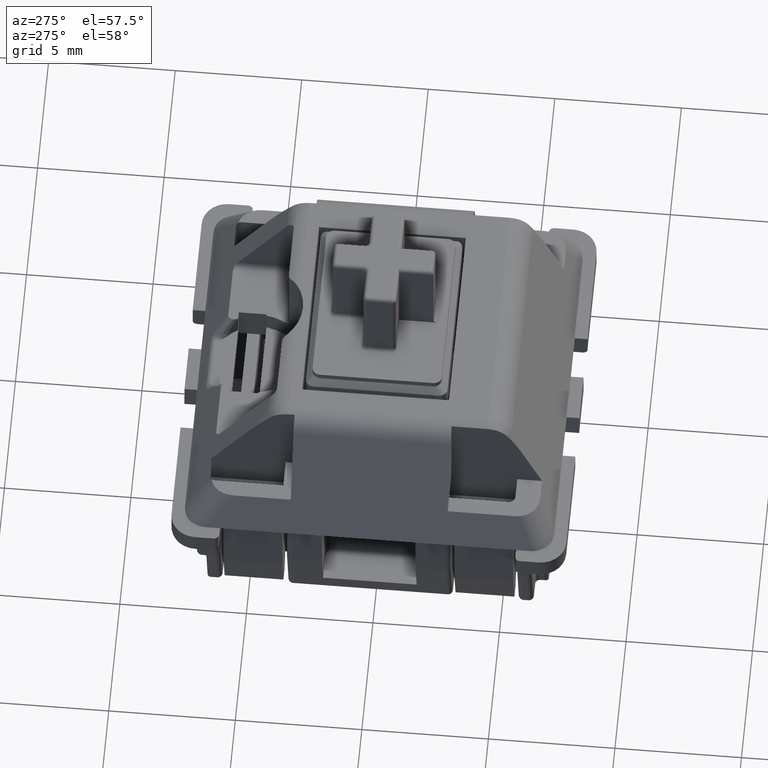
[diagram: clean part render]
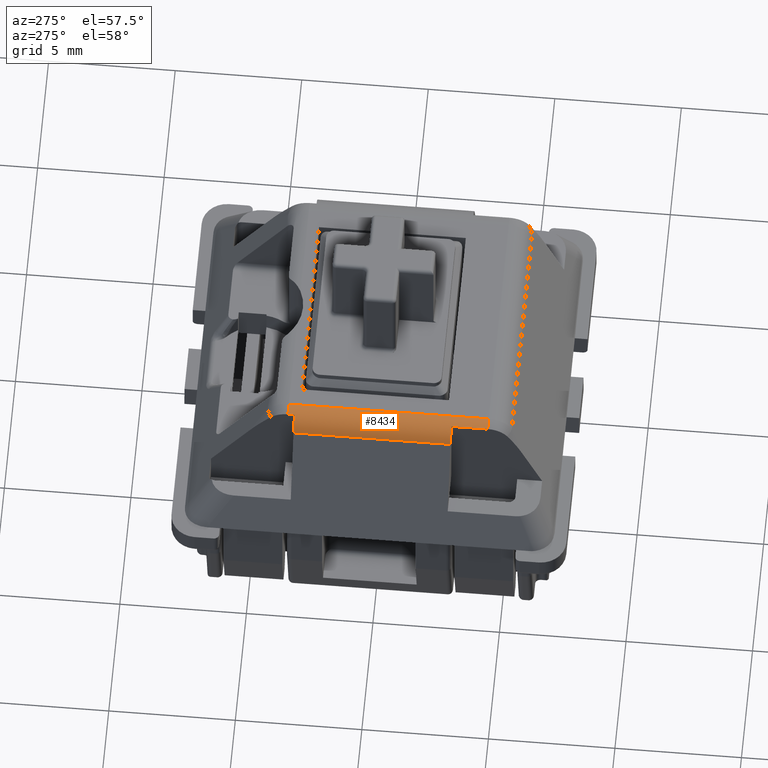
[diagram: same view with one face highlighted and labeled with its STEP entity id]
A machine part, auxiliary view. The second image highlights one B-rep face of the part: STEP entity #8434.
In plain terms, the highlighted cylindrical surface (edge-blend (fillet) strip) has radius 1 mm, axis along (0, 1, 0).
Its self-contained STEP definition (entity closure, byte-faithful):
#7206=CARTESIAN_POINT('',(-0.178358554166627,0.132473080374488,0.200787401574803));
#7207=VERTEX_POINT('',#7206);
#7692=CARTESIAN_POINT('',(-0.194881889763779,-0.122047244094488,0.19715221447783));
#7693=VERTEX_POINT('',#7692);
#7694=CARTESIAN_POINT('',(-0.194881889763779,-0.178358554166628,0.19715221447783));
#7695=VERTEX_POINT('',#7694);
#7696=CARTESIAN_POINT('',(-0.194881889763779,-0.122047244094488,0.19715221447783));
#7697=DIRECTION('',(0.0,-1.0,0.0));
#7698=VECTOR('',#7697,0.05631131007214);
#7699=LINE('',#7696,#7698);
#7700=EDGE_CURVE('',#7693,#7695,#7699,.T.);
#7750=CARTESIAN_POINT('',(-0.214763203712876,-0.122047244094488,0.176407472647807));
#7751=VERTEX_POINT('',#7750);
#7752=CARTESIAN_POINT('',(-0.178358554166627,-0.122047244094488,0.161417322834646));
#7753=DIRECTION('',(0.0,1.0,0.0));
#7754=DIRECTION('',(-0.556439661933666,0.0,0.830888020510073));
#7755=AXIS2_PLACEMENT_3D('',#7752,#7753,#7754);
#7756=CIRCLE('',#7755,0.039370078740157);
#7757=EDGE_CURVE('',#7751,#7693,#7756,.T.);
#7941=CARTESIAN_POINT('',(-0.194881889763779,0.122047244094488,0.19715221447783));
#7942=VERTEX_POINT('',#7941);
#7943=CARTESIAN_POINT('',(-0.214763203712876,0.122047244094488,0.176407472647807));
#7944=VERTEX_POINT('',#7943);
#7945=CARTESIAN_POINT('',(-0.178358554166627,0.122047244094488,0.161417322834646));
#7946=DIRECTION('',(0.0,-1.0,0.0));
#7947=DIRECTION('',(-0.556439661933666,0.0,0.830888020510073));
#7948=AXIS2_PLACEMENT_3D('',#7945,#7946,#7947);
#7949=CIRCLE('',#7948,0.039370078740157);
#7950=EDGE_CURVE('',#7942,#7944,#7949,.T.);
#7973=CARTESIAN_POINT('',(-0.194881889763779,0.132473080374488,0.19715221447783));
#7974=VERTEX_POINT('',#7973);
#7975=CARTESIAN_POINT('',(-0.194881889763779,0.132473080374488,0.19715221447783));
#7976=DIRECTION('',(0.0,-1.0,0.0));
#7977=VECTOR('',#7976,0.01042583628);
#7978=LINE('',#7975,#7977);
#7979=EDGE_CURVE('',#7974,#7942,#7978,.T.);
#8026=CARTESIAN_POINT('',(-0.178358554166627,-0.178358554166628,0.200787401574803));
#8027=VERTEX_POINT('',#8026);
#8035=CARTESIAN_POINT('',(-0.178358554166627,-0.178358554166628,0.161417322834646));
#8036=DIRECTION('',(0.0,1.0,0.0));
#8037=DIRECTION('',(-0.924678098474716,0.0,0.380749805254295));
#8038=AXIS2_PLACEMENT_3D('',#8035,#8036,#8037);
#8039=CIRCLE('',#8038,0.039370078740157);
#8040=EDGE_CURVE('',#7695,#8027,#8039,.T.);
#8391=CARTESIAN_POINT('',(-0.178358554166627,0.132473080374488,0.161417322834646));
#8392=DIRECTION('',(0.0,-1.0,0.0));
#8393=DIRECTION('',(0.0,0.0,1.0));
#8394=AXIS2_PLACEMENT_3D('',#8391,#8392,#8393);
#8395=CIRCLE('',#8394,0.039370078740157);
#8396=EDGE_CURVE('',#7207,#7974,#8395,.T.);
#8409=CARTESIAN_POINT('',(-0.178358554166627,-0.193900135893684,0.161417322834646));
#8410=DIRECTION('',(0.0,1.0,0.0));
#8411=DIRECTION('',(0.556439661933669,0.0,-0.830888020510071));
#8412=AXIS2_PLACEMENT_3D('',#8409,#8410,#8411);
#8413=CYLINDRICAL_SURFACE('',#8412,0.039370078740157);
#8414=ORIENTED_EDGE('',*,*,#7700,.T.);
#8415=ORIENTED_EDGE('',*,*,#8040,.T.);
#8416=CARTESIAN_POINT('',(-0.178358554166627,-0.178358554166628,0.200787401574803));
#8417=DIRECTION('',(0.0,1.0,0.0));
#8418=VECTOR('',#8417,0.310831634541116);
#8419=LINE('',#8416,#8418);
#8420=EDGE_CURVE('',#8027,#7207,#8419,.T.);
#8421=ORIENTED_EDGE('',*,*,#8420,.T.);
#8422=ORIENTED_EDGE('',*,*,#8396,.T.);
#8423=ORIENTED_EDGE('',*,*,#7979,.T.);
#8424=ORIENTED_EDGE('',*,*,#7950,.T.);
#8425=CARTESIAN_POINT('',(-0.214763203712876,0.122047244094488,0.176407472647807));
#8426=DIRECTION('',(0.0,-1.0,0.0));
#8427=VECTOR('',#8426,0.244094488188976);
#8428=LINE('',#8425,#8427);
#8429=EDGE_CURVE('',#7944,#7751,#8428,.T.);
#8430=ORIENTED_EDGE('',*,*,#8429,.T.);
#8431=ORIENTED_EDGE('',*,*,#7757,.T.);
#8432=EDGE_LOOP('',(#8414,#8415,#8421,#8422,#8423,#8424,#8430,#8431));
#8433=FACE_OUTER_BOUND('',#8432,.T.);
#8434=ADVANCED_FACE('',(#8433),#8413,.T.);